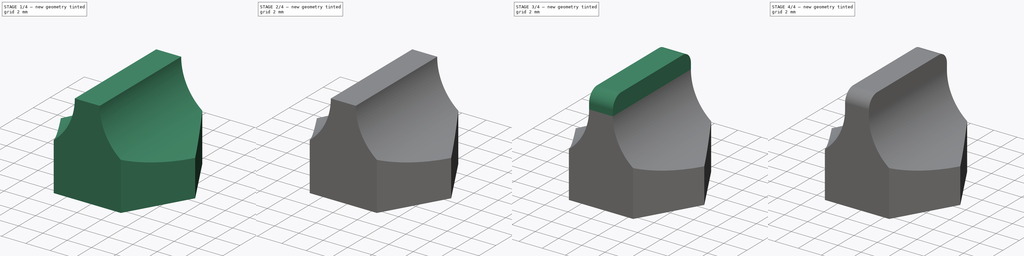
[diagram: build sequence overview — one tinted view per stage of 4, left to right]
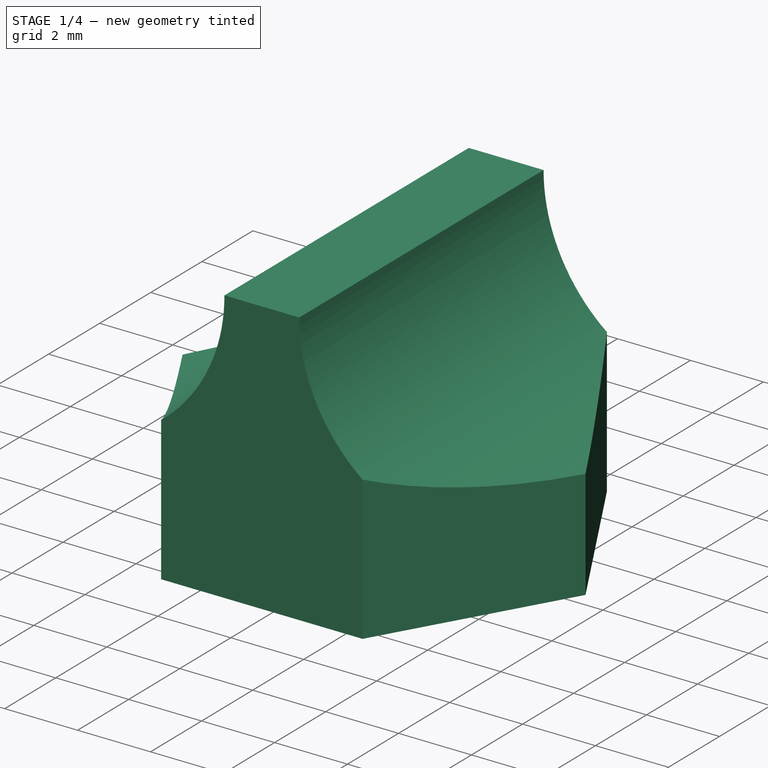
[diagram: stage 1 of 4 — iso view after this stage's code; geometry added in this stage tinted green]
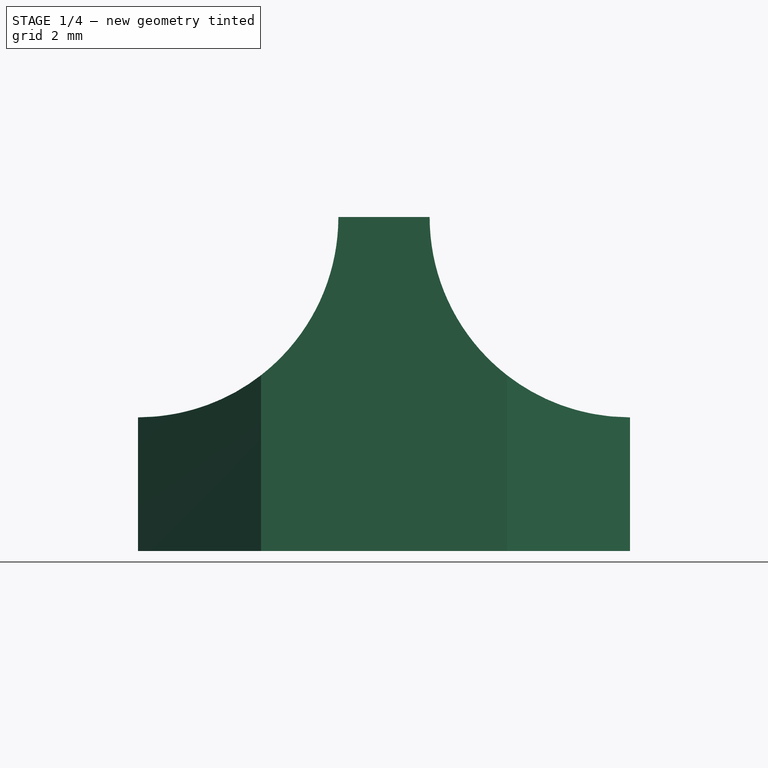
[diagram: stage 1 of 4 — front view after this stage's code; geometry added in this stage tinted green]
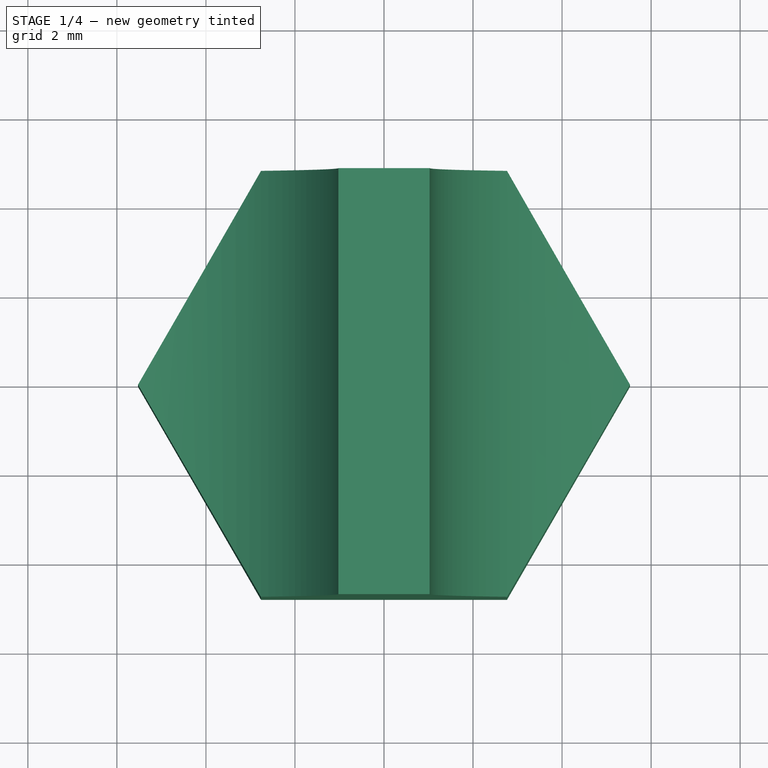
[diagram: stage 1 of 4 — top view after this stage's code; geometry added in this stage tinted green]
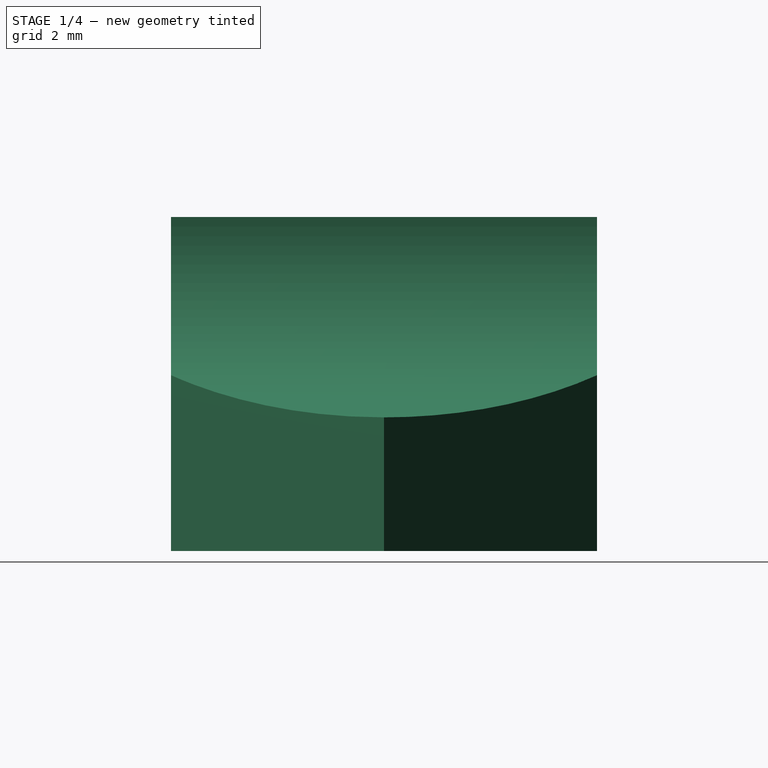
[diagram: stage 1 of 4 — right view after this stage's code; geometry added in this stage tinted green]
FCSTD DOCUMENT  (FreeCAD 1.0R39319 (Git))
Label: Thumb-Screw-Cap_A_M3_M6-outer
License: All rights reserved
LicenseURL: https://en.wikipedia.org/wiki/All_rights_reserved
objects: Sketcher::SketchObject×9, PartDesign::Pad×4, PartDesign::Pocket×4, PartDesign::Fillet×2, PartDesign::Body×2, PartDesign::Hole×1
note: 53 computed .brp shape members not serialized (recipe doc carries the construction recipe); baked Part::Feature solids carry a one-line shape summary decoded from their .brp

FEATURE [Sketcher::SketchObject] Sketch
  ArcFitTolerance = 1e-06
  AttachmentSupport = -> [XY_Plane]
  FullyConstrained = true
  MakeInternals = false
  MapMode = 5
  sketch-geometry (7):
    g0: LineSegment StartX=5.525 StartY=-1e-16 StartZ=0 EndX=2.7625 EndY=4.78479 EndZ=0
    g1: LineSegment StartX=2.7625 StartY=4.78479 StartZ=0 EndX=-2.7625 EndY=4.78479 EndZ=0
    g2: LineSegment StartX=-2.7625 StartY=4.78479 StartZ=0 EndX=-5.525 EndY=6.2093e-12 EndZ=0
    g3: LineSegment StartX=-5.525 StartY=6.209e-12 StartZ=0 EndX=-2.7625 EndY=-4.78479 EndZ=0
    g4: LineSegment StartX=-2.7625 StartY=-4.78479 StartZ=0 EndX=2.7625 EndY=-4.78479 EndZ=0
    g5: LineSegment StartX=2.7625 StartY=-4.78479 StartZ=0 EndX=5.525 EndY=0 EndZ=0
    g6: Circle [constr] CenterX=-1e-16 CenterY=0 CenterZ=0 NormalX=0 NormalY=0 NormalZ=1 AngleXU=0 Radius=5.525
  constraints (16):
    c: Coincident(g0,g1)
    c: Coincident(g1,g2)
    c: Coincident(g2,g3)
    c: Coincident(g3,g4)
    c: Coincident(g4,g5)
    c: Coincident(g5,g0)
    c: Equal(g0, g1-g5) x5
    c: PointOnObject(g0,g6)
    c: PointOnObject(g1,g6)
    c: PointOnObject(g2,g6)
    c: PointOnObject(g3,g6)
    c: PointOnObject(g4,g6)
    c: PointOnObject(g5,g6)
    c: Radius(g6) = 5.525
    c: Coincident(g6,g-1)
    c: PointOnObject(g5,g-1)
FEATURE [PartDesign::Pad] Pad
  Direction = (0,0,1)
  Length = 7.5
  Length2 = 10
  Profile = -> Sketch
  ReferenceAxis = -> Sketch [N_Axis]
  Refine = true
  Suppressed = false
  Type = 0
FEATURE [Sketcher::SketchObject] Sketch001
  ArcFitTolerance = 1e-06
  AttachmentSupport = -> [Pad]
  ExternalGeometry = -> [Pad]
  FullyConstrained = true
  MakeInternals = false
  MapMode = 5
  Placement = pos=(-4.54034e-11,-4.78479,0) rot=(1,0,0;1.5708rad)
  sketch-geometry (2):
    g0: Circle CenterX=-5.525 CenterY=7.5 CenterZ=0 NormalX=0 NormalY=0 NormalZ=1 AngleXU=0 Radius=4.5
    g1: Circle CenterX=5.525 CenterY=7.5 CenterZ=0 NormalX=0 NormalY=0 NormalZ=1 AngleXU=0 Radius=4.5
  constraints (4):
    c: Diameter(g0) = 9
    c: Coincident(g0,g-3)
    c: Diameter(g1) = 9
    c: Coincident(g1,g-4)
FEATURE [PartDesign::Pocket] Pocket
  BaseFeature = -> Pad
  Direction = (9.4891e-12,1,-2e-16)
  Length = 30
  Length2 = 5
  Profile = -> Sketch001
  ReferenceAxis = -> Sketch001 [N_Axis]
  Refine = true
  Suppressed = false
  Type = 0
FEATURE [Sketcher::SketchObject] Sketch002
  ArcFitTolerance = 1e-06
  FullyConstrained = true
  MakeInternals = false
  MapMode = 5
  Placement = pos=(0,0,0) rot=(1,0,0;3.14159rad)
  sketch-geometry (1):
    g0: Circle CenterX=0 CenterY=0 CenterZ=0 NormalX=0 NormalY=0 NormalZ=1 AngleXU=0 Radius=1.25
  constraints (2):
    c: Diameter(g0) = 2.5
    c: Coincident(g0,g-1)
FEATURE [PartDesign::Hole] Hole
  BaseFeature = -> Pocket
  CustomThreadClearance = 0
  Depth = 5
  DepthType = 0
  Diameter = 3.4
  DrillForDepth = false
  DrillPoint = 1
  DrillPointAngle = 118
  HoleCutCountersinkAngle = 90
  HoleCutCustomValues = false
  HoleCutDepth = 0
  HoleCutDiameter = 6.1
  HoleCutType = 0
  ModelThread = true
  Profile = -> Sketch002
  Refine = true
  Suppressed = false
  Tapered = false
  TaperedAngle = 90
  ThreadClass = 0
  ThreadDepth = 5
  ThreadDepthType = 0
  ThreadDirection = 0
  ThreadFit = 0
  ThreadSize = 9
  ThreadType = 1
  Threaded = false
  UseCustomThreadClearance = false
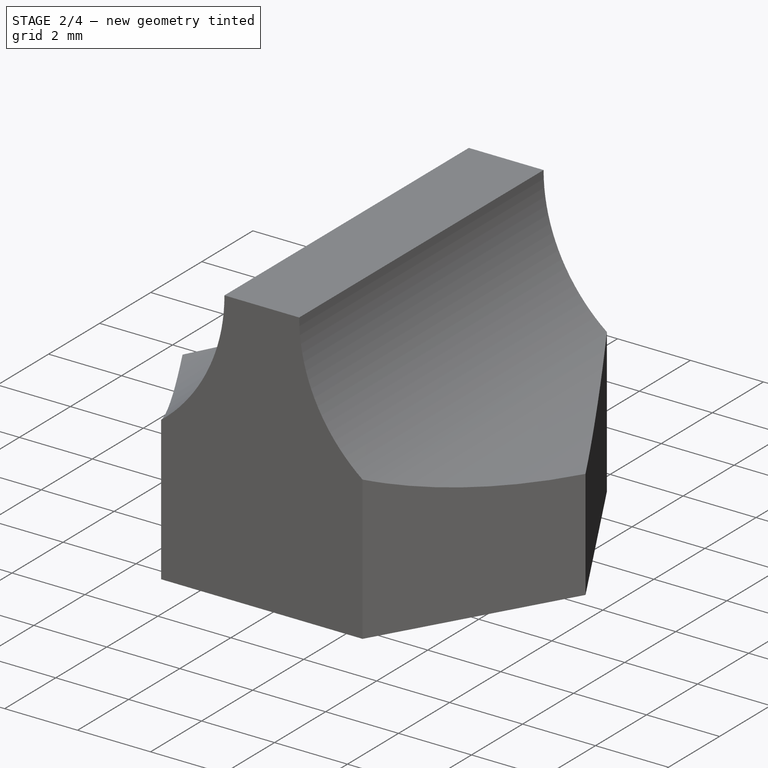
[diagram: stage 2 of 4 — iso view after this stage's code; geometry added in this stage tinted green]
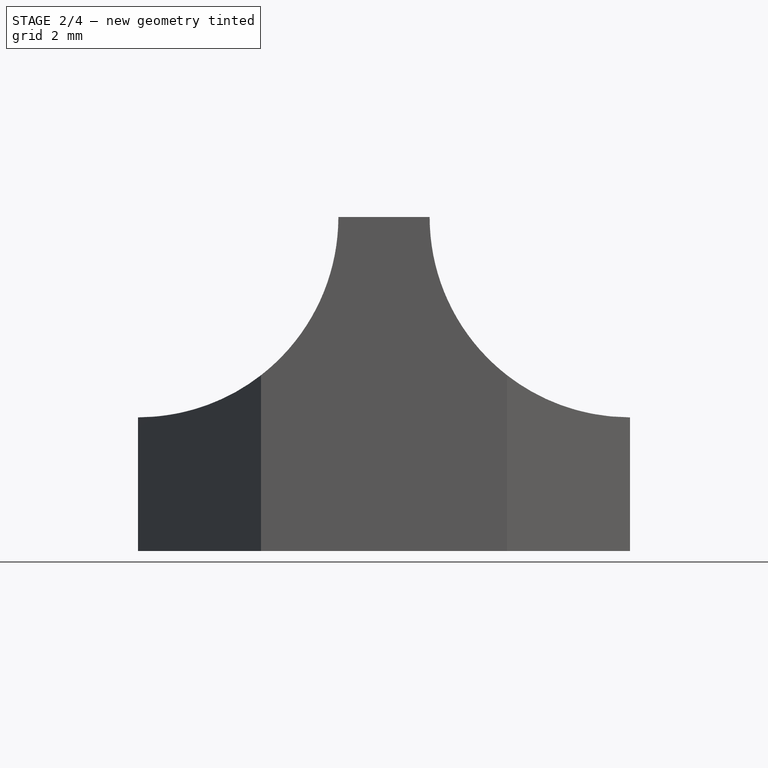
[diagram: stage 2 of 4 — front view after this stage's code; geometry added in this stage tinted green]
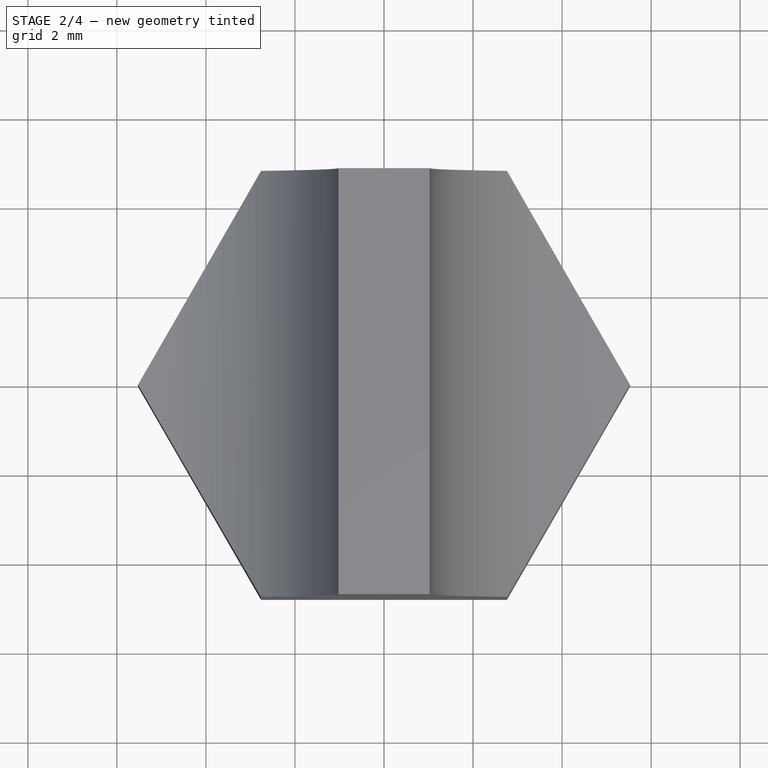
[diagram: stage 2 of 4 — top view after this stage's code; geometry added in this stage tinted green]
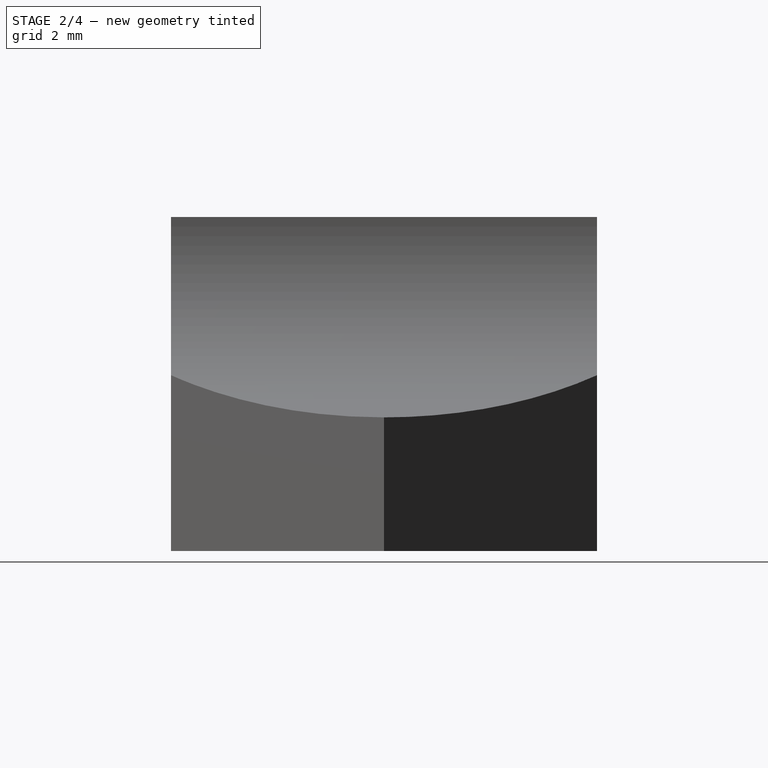
[diagram: stage 2 of 4 — right view after this stage's code; geometry added in this stage tinted green]
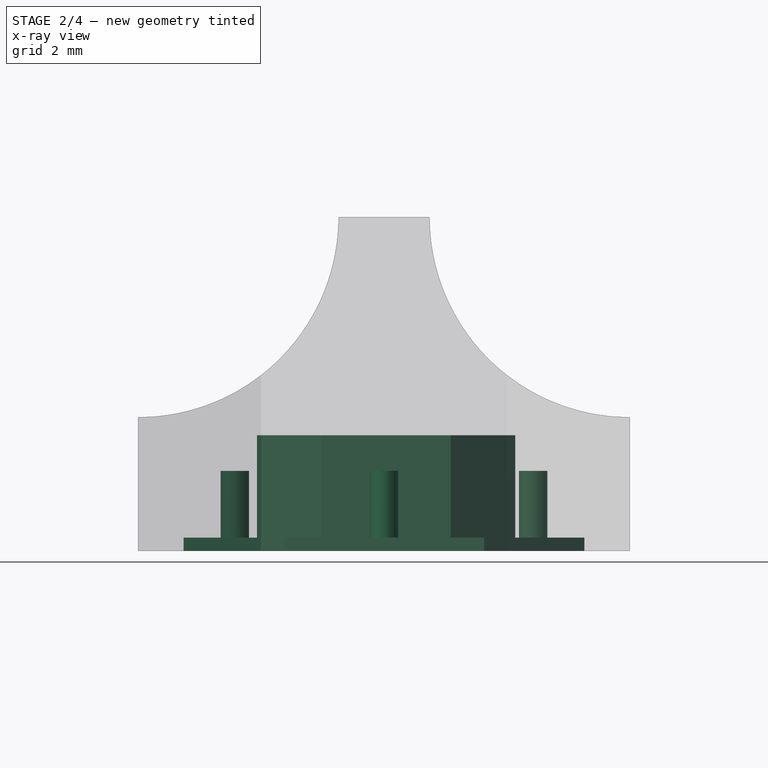
[diagram: stage 2 of 4 — x-ray composite at the front view; earlier geometry ghosted, this stage's added geometry solid]
FEATURE [Sketcher::SketchObject] Sketch003
  ArcFitTolerance = 1e-06
  AttachmentSupport = -> [Hole]
  FullyConstrained = false
  MakeInternals = false
  MapMode = 5
  Placement = pos=(0,0,0) rot=(1,0,0;3.14159rad)
  sketch-geometry (7):
    g0: LineSegment StartX=2.94834 StartY=0 StartZ=0 EndX=1.49834 EndY=2.51147 EndZ=0
    g1: LineSegment StartX=1.49834 StartY=2.51147 StartZ=0 EndX=-1.40166 EndY=2.51147 EndZ=0
    g2: LineSegment StartX=-1.40166 StartY=2.51147 StartZ=0 EndX=-2.85166 EndY=-4.8646e-12 EndZ=0
    g3: LineSegment StartX=-2.85166 StartY=-4.8646e-12 StartZ=0 EndX=-1.40166 EndY=-2.51147 EndZ=0
    g4: LineSegment StartX=-1.40166 StartY=-2.51147 StartZ=0 EndX=1.49834 EndY=-2.51147 EndZ=0
    g5: LineSegment StartX=1.49834 StartY=-2.51147 StartZ=0 EndX=2.94834 EndY=0 EndZ=0
    g6: Circle [constr] CenterX=0.0483408 CenterY=0 CenterZ=0 NormalX=0 NormalY=0 NormalZ=1 AngleXU=0 Radius=2.9
  constraints (16):
    c: Coincident(g0,g1)
    c: Coincident(g1,g2)
    c: Coincident(g2,g3)
    c: Coincident(g3,g4)
    c: Coincident(g4,g5)
    c: Coincident(g5,g0)
    c: Equal(g0, g1-g5) x5
    c: PointOnObject(g0,g6)
    c: PointOnObject(g1,g6)
    c: PointOnObject(g2,g6)
    c: PointOnObject(g3,g6)
    c: PointOnObject(g4,g6)
    c: PointOnObject(g5,g6)
    c: Radius(g6) = 2.9
    c: PointOnObject(g6,g-1)
    c: PointOnObject(g5,g-1)
FEATURE [PartDesign::Pocket] Pocket001
  BaseFeature = -> Hole
  Direction = (0,0,1)
  Length = 2.6
  Length2 = 5
  Profile = -> Sketch003
  ReferenceAxis = -> Sketch003 [N_Axis]
  Refine = true
  Suppressed = false
  Type = 0
FEATURE [Sketcher::SketchObject] Sketch004
  ArcFitTolerance = 1e-06
  AttachmentSupport = -> [Pocket001]
  FullyConstrained = true
  MakeInternals = false
  MapMode = 5
  Placement = pos=(0,0,0) rot=(1,0,0;3.14159rad)
  sketch-geometry (7):
    g0: LineSegment StartX=4.5 StartY=0 StartZ=0 EndX=2.25 EndY=3.89711 EndZ=0
    g1: LineSegment StartX=2.25 StartY=3.89711 StartZ=0 EndX=-2.25 EndY=3.89711 EndZ=0
    g2: LineSegment StartX=-2.25 StartY=3.89711 StartZ=0 EndX=-4.5 EndY=4e-16 EndZ=0
    g3: LineSegment StartX=-4.5 StartY=4e-16 StartZ=0 EndX=-2.25 EndY=-3.89711 EndZ=0
    g4: LineSegment StartX=-2.25 StartY=-3.89711 StartZ=0 EndX=2.25 EndY=-3.89711 EndZ=0
    g5: LineSegment StartX=2.25 StartY=-3.89711 StartZ=0 EndX=4.5 EndY=0 EndZ=0
    g6: Circle [constr] CenterX=0 CenterY=0 CenterZ=0 NormalX=0 NormalY=0 NormalZ=1 AngleXU=0 Radius=4.5
  constraints (16):
    c: Coincident(g0,g1)
    c: Coincident(g1,g2)
    c: Coincident(g2,g3)
    c: Coincident(g3,g4)
    c: Coincident(g4,g5)
    c: Coincident(g5,g0)
    c: Equal(g0, g1-g5) x5
    c: PointOnObject(g0,g6)
    c: PointOnObject(g1,g6)
    c: PointOnObject(g2,g6)
    c: PointOnObject(g3,g6)
    c: PointOnObject(g4,g6)
    c: PointOnObject(g5,g6)
    c: Radius(g6) = 4.5
    c: Coincident(g6,g-1)
    c: PointOnObject(g5,g-1)
FEATURE [PartDesign::Pocket] Pocket002
  BaseFeature = -> Pocket001
  Direction = (0,0,1)
  Length = 0.3
  Length2 = 5
  Profile = -> Sketch004
  ReferenceAxis = -> Sketch004 [N_Axis]
  Refine = true
  Suppressed = false
  Type = 0
FEATURE [PartDesign::Body] Body001  label="Cap-body"
  AllowCompound = false
  Group = -> [Sketch005,Pad001,Sketch006,Pad002,Fillet]
  Origin = -> Origin001
  Tip = -> Fillet
FEATURE [Sketcher::SketchObject] Sketch007
  ArcFitTolerance = 1e-06
  AttachmentSupport = -> [Pocket002]
  FullyConstrained = false
  MakeInternals = false
  MapMode = 5
  Placement = pos=(0,0,0.3) rot=(1,0,0;3.14159rad)
  sketch-geometry (5):
    g0: Circle [constr] CenterX=0 CenterY=0 CenterZ=0 NormalX=0 NormalY=0 NormalZ=1 AngleXU=0 Radius=3.35
    g1: Circle CenterX=0.000817 CenterY=-3.35 CenterZ=0 NormalX=0 NormalY=0 NormalZ=1 AngleXU=0 Radius=0.32
    g2: Circle CenterX=-3.35 CenterY=-0.004097 CenterZ=0 NormalX=0 NormalY=0 NormalZ=1 AngleXU=0 Radius=0.32
    g3: Circle CenterX=0.000817 CenterY=3.35 CenterZ=0 NormalX=0 NormalY=0 NormalZ=1 AngleXU=0 Radius=0.32
    g4: Circle CenterX=3.35 CenterY=-0.004097 CenterZ=0 NormalX=0 NormalY=0 NormalZ=1 AngleXU=0 Radius=0.32
  constraints (8):
    c: Diameter(g0) = 6.7
    c: Coincident(g0,g-1)
    c: Diameter(g1) = 0.64
    c: PointOnObject(g1,g0)
    c: Diameter(g2) = 0.64
    c: PointOnObject(g2,g0)
    c: Diameter(g3) = 0.64
    c: Diameter(g4) = 0.64
FEATURE [PartDesign::Pocket] Pocket003
  BaseFeature = -> Pocket002
  Direction = (0,0,1)
  Length = 1.5
  Length2 = 5
  Profile = -> Sketch007
  ReferenceAxis = -> Sketch007 [N_Axis]
  Refine = true
  Suppressed = false
  Type = 0
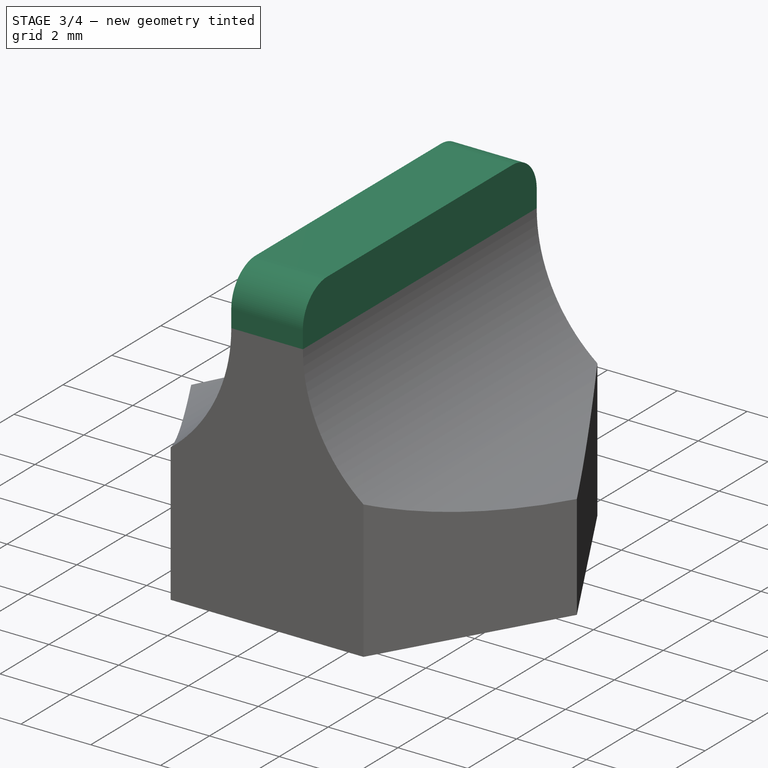
[diagram: stage 3 of 4 — iso view after this stage's code; geometry added in this stage tinted green]
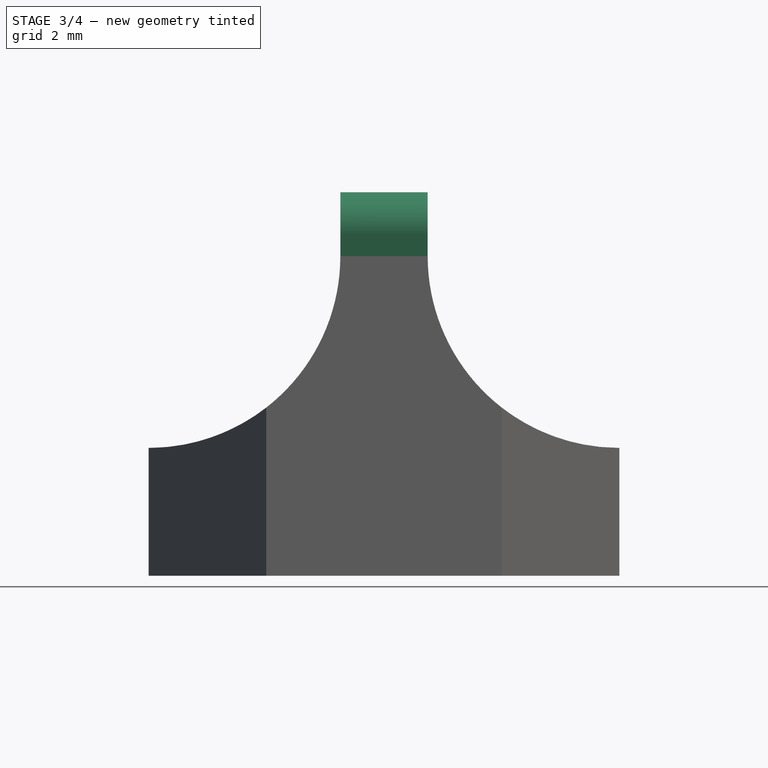
[diagram: stage 3 of 4 — front view after this stage's code; geometry added in this stage tinted green]
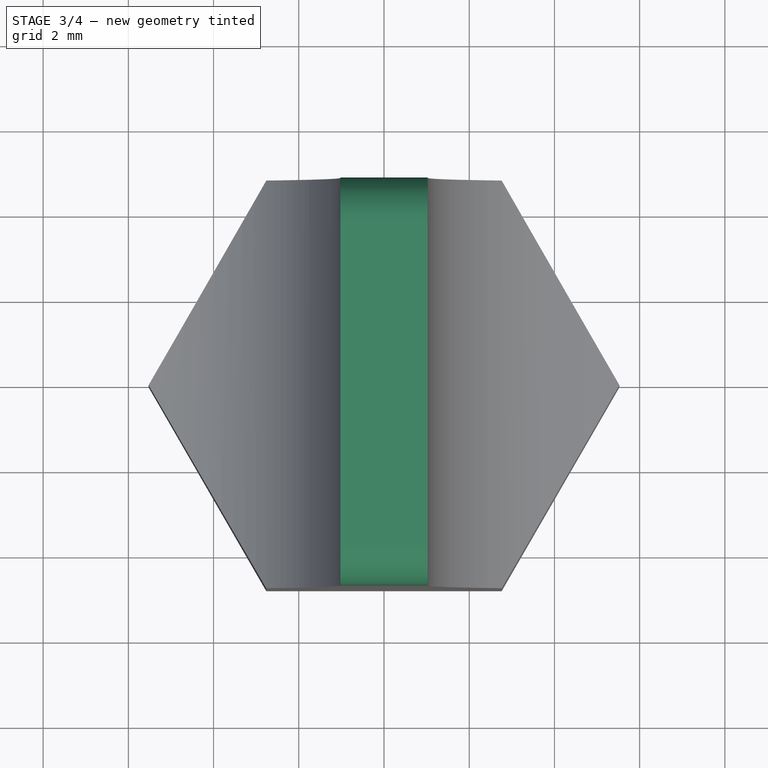
[diagram: stage 3 of 4 — top view after this stage's code; geometry added in this stage tinted green]
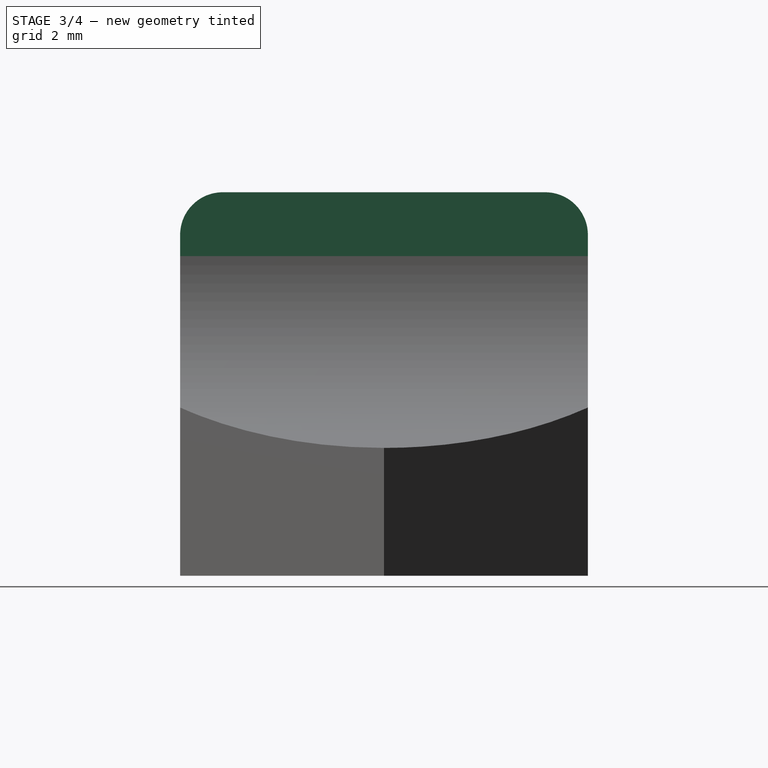
[diagram: stage 3 of 4 — right view after this stage's code; geometry added in this stage tinted green]
FEATURE [Sketcher::SketchObject] Sketch008
  ArcFitTolerance = 1e-06
  AttachmentSupport = -> [Pocket003]
  ExternalGeometry = -> [Pocket003]
  FullyConstrained = true
  MakeInternals = false
  MapMode = 5
  Placement = pos=(0,0,7.5) rot=(0,0,1;0rad)
  sketch-geometry (4):
    g0: LineSegment StartX=-1.025 StartY=4.78479 StartZ=0 EndX=-1.025 EndY=-4.78479 EndZ=0
    g1: LineSegment StartX=-1.025 StartY=-4.78479 StartZ=0 EndX=1.025 EndY=-4.78479 EndZ=0
    g2: LineSegment StartX=1.025 StartY=-4.78479 StartZ=0 EndX=1.025 EndY=4.78479 EndZ=0
    g3: LineSegment StartX=1.025 StartY=4.78479 StartZ=0 EndX=-1.025 EndY=4.78479 EndZ=0
  constraints (10):
    c: Coincident(g0,g1)
    c: Coincident(g1,g2)
    c: Coincident(g2,g3)
    c: Coincident(g3,g0)
    c: Vertical(g0)
    c: Vertical(g2)
    c: Horizontal(g1)
    c: Horizontal(g3)
    c: Coincident(g0,g-3)
    c: Coincident(g1,g-4)
FEATURE [PartDesign::Pad] Pad003
  BaseFeature = -> Pocket003
  Direction = (0,0,1)
  Length = 1.5
  Length2 = 10
  Profile = -> Sketch008
  ReferenceAxis = -> Sketch008 [N_Axis]
  Refine = true
  Suppressed = false
  Type = 0
FEATURE [PartDesign::Fillet] Fillet001
  Base = -> Pad003 [Edge57,Edge58]
  BaseFeature = -> Pad003
  Radius = 1
  Refine = true
  SupportTransform = false
  Suppressed = false
  UseAllEdges = false
FEATURE [PartDesign::Body] Body  label="Main-body"
  AllowCompound = false
  Group = -> [Sketch,Pad,Sketch001,Pocket,Sketch002,Hole,Sketch003,Pocket001,Sketch004,Pocket002,Sketch007,Pocket003,Sketch008,Pad003,Fillet001]
  Origin = -> Origin
  Tip = -> Fillet001
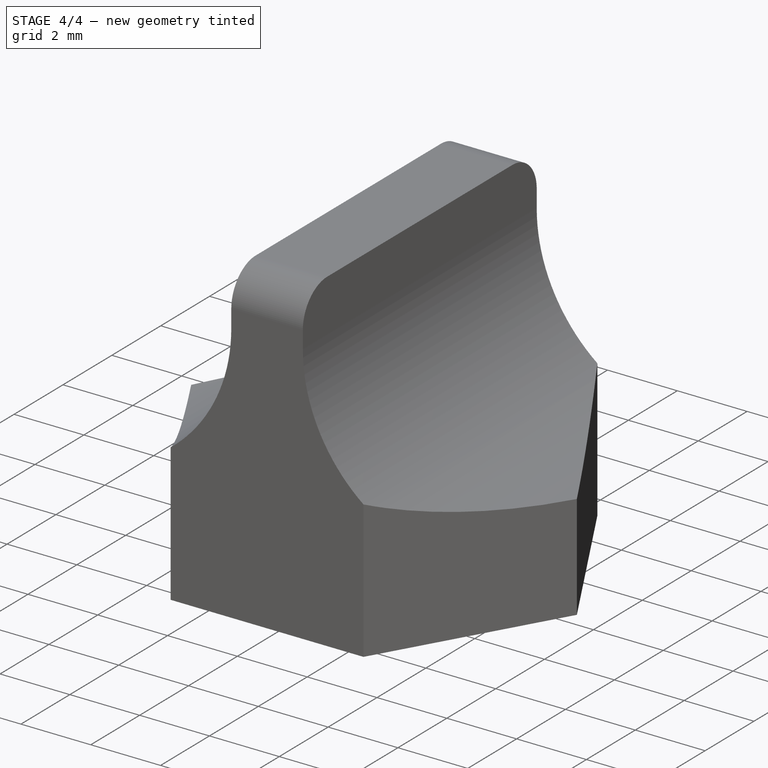
[diagram: stage 4 of 4 — iso view after this stage's code; geometry added in this stage tinted green]
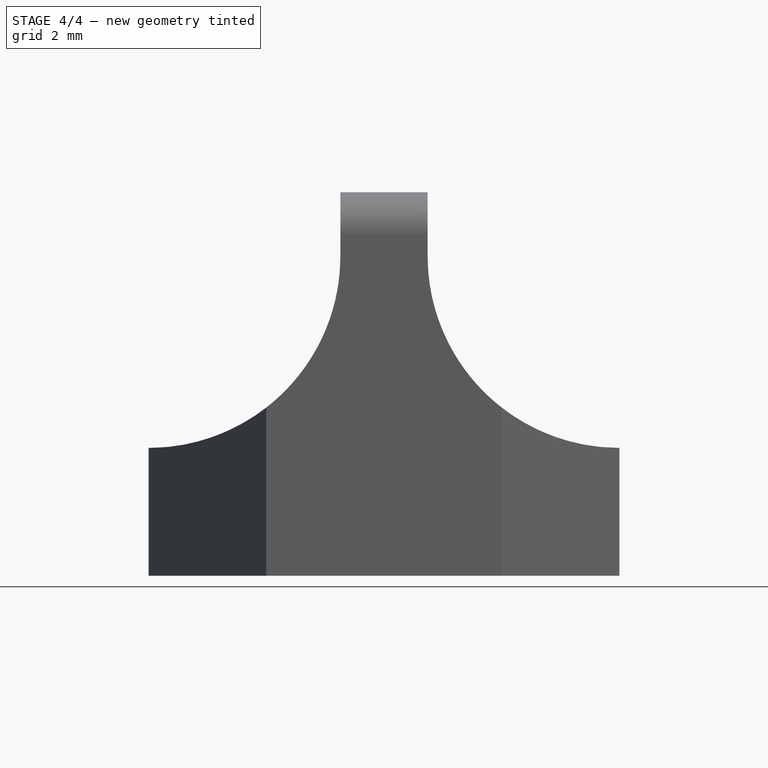
[diagram: stage 4 of 4 — front view after this stage's code; geometry added in this stage tinted green]
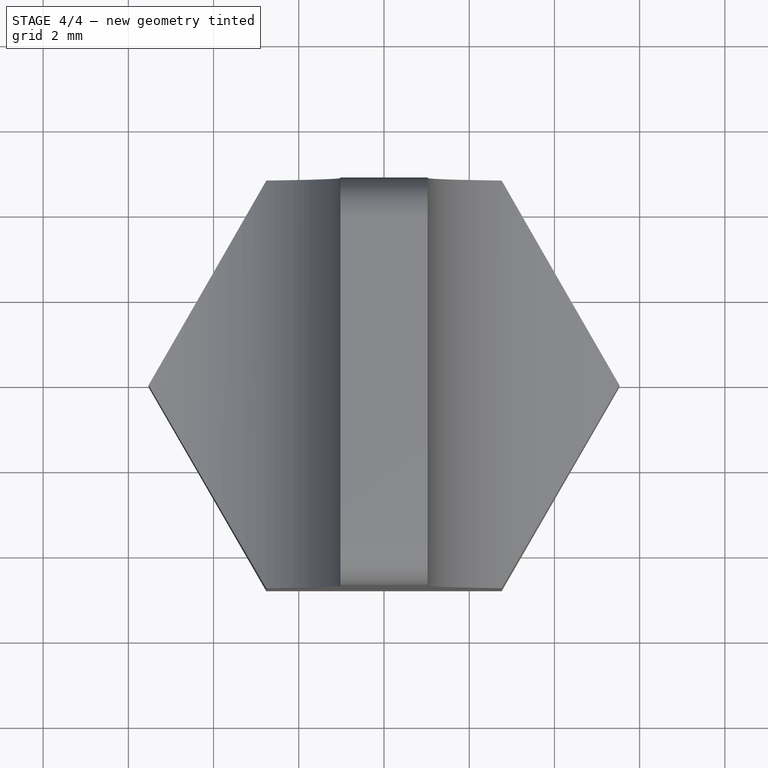
[diagram: stage 4 of 4 — top view after this stage's code; geometry added in this stage tinted green]
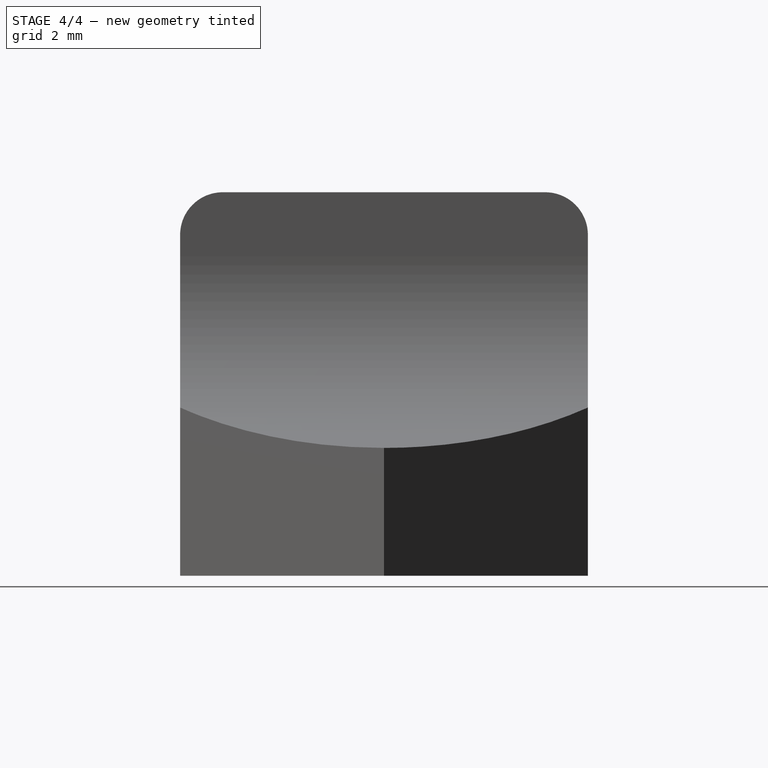
[diagram: stage 4 of 4 — right view after this stage's code; geometry added in this stage tinted green]
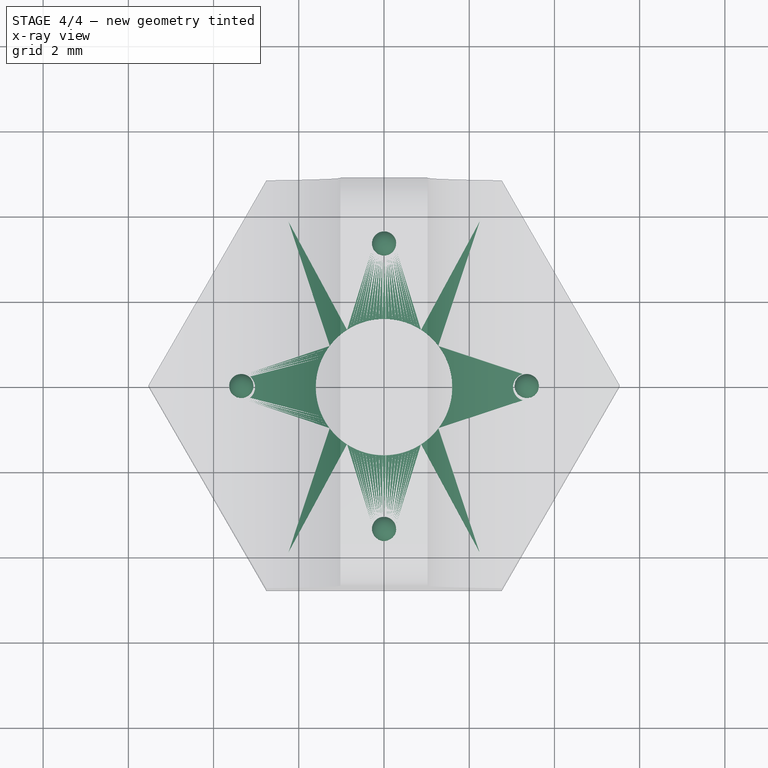
[diagram: stage 4 of 4 — x-ray composite at the top view; earlier geometry ghosted, this stage's added geometry solid]
FEATURE [Sketcher::SketchObject] Sketch005
  ArcFitTolerance = 1e-06
  AttachmentSupport = -> [XY_Plane001]
  FullyConstrained = true
  MakeInternals = false
  MapMode = 5
  sketch-geometry (8):
    g0: LineSegment StartX=4.5 StartY=0 StartZ=0 EndX=2.25 EndY=3.89711 EndZ=0
    g1: LineSegment StartX=2.25 StartY=3.89711 StartZ=0 EndX=-2.25 EndY=3.89711 EndZ=0
    g2: LineSegment StartX=-2.25 StartY=3.89711 StartZ=0 EndX=-4.5 EndY=4e-16 EndZ=0
    g3: LineSegment StartX=-4.5 StartY=4e-16 StartZ=0 EndX=-2.25 EndY=-3.89711 EndZ=0
    g4: LineSegment StartX=-2.25 StartY=-3.89711 StartZ=0 EndX=2.25 EndY=-3.89711 EndZ=0
    g5: LineSegment StartX=2.25 StartY=-3.89711 StartZ=0 EndX=4.5 EndY=0 EndZ=0
    g6: Circle [constr] CenterX=0 CenterY=0 CenterZ=0 NormalX=0 NormalY=0 NormalZ=1 AngleXU=0 Radius=4.5
    g7: Circle CenterX=0 CenterY=0 CenterZ=0 NormalX=0 NormalY=0 NormalZ=1 AngleXU=0 Radius=1.6
  constraints (18):
    c: Coincident(g0,g1)
    c: Coincident(g1,g2)
    c: Coincident(g2,g3)
    c: Coincident(g3,g4)
    c: Coincident(g4,g5)
    c: Coincident(g5,g0)
    c: Equal(g0, g1-g5) x5
    c: PointOnObject(g0,g6)
    c: PointOnObject(g1,g6)
    c: PointOnObject(g2,g6)
    c: PointOnObject(g3,g6)
    c: PointOnObject(g4,g6)
    c: PointOnObject(g5,g6)
    c: Radius(g6) = 4.5
    c: Coincident(g6,g-1)
    c: PointOnObject(g5,g-1)
    c: Diameter(g7) = 3.2
    c: Coincident(g7,g6)
FEATURE [PartDesign::Pad] Pad001
  Direction = (0,0,1)
  Length = 0.3
  Length2 = 10
  Profile = -> Sketch005
  ReferenceAxis = -> Sketch005 [N_Axis]
  Refine = true
  Suppressed = false
  Type = 0
FEATURE [Sketcher::SketchObject] Sketch006
  ArcFitTolerance = 1e-06
  AttachmentSupport = -> [Pad001]
  ExternalGeometry = -> [Pad001]
  FullyConstrained = false
  MakeInternals = false
  MapMode = 5
  Placement = pos=(0,0,0.3) rot=(0,0,1;0rad)
  sketch-geometry (14):
    g0: LineSegment [constr] StartX=2.8 StartY=-1.24e-14 StartZ=0 EndX=1.4 EndY=2.42487 EndZ=0
    g1: LineSegment [constr] StartX=1.4 StartY=2.42487 StartZ=0 EndX=-1.4 EndY=2.42487 EndZ=0
    g2: LineSegment [constr] StartX=-1.4 StartY=2.42487 StartZ=0 EndX=-2.8 EndY=1.097e-13 EndZ=0
    g3: LineSegment [constr] StartX=-2.8 StartY=1.097e-13 StartZ=0 EndX=-1.4 EndY=-2.42487 EndZ=0
    g4: LineSegment [constr] StartX=-1.4 StartY=-2.42487 StartZ=0 EndX=1.4 EndY=-2.42487 EndZ=0
    g5: LineSegment [constr] StartX=1.4 StartY=-2.42487 StartZ=0 EndX=2.8 EndY=-1.24e-14 EndZ=0
    g6: Circle [constr] CenterX=-1.525e-13 CenterY=2.95e-14 CenterZ=0 NormalX=0 NormalY=0 NormalZ=1 AngleXU=0 Radius=2.8
    g7: LineSegment [constr] StartX=-2.7e-15 StartY=-3.89711 StartZ=0 EndX=-2.7e-15 EndY=-2.8 EndZ=0
    g8: GeomPoint [constr] X=-2.7e-15 Y=-3.34856 Z=0
    g9: Circle [constr] CenterX=-1.525e-13 CenterY=2.95e-14 CenterZ=0 NormalX=0 NormalY=0 NormalZ=1 AngleXU=0 Radius=3.34856
    g10: Circle CenterX=-3.34856 CenterY=-0.00293695 CenterZ=0 NormalX=0 NormalY=0 NormalZ=1 AngleXU=0 Radius=0.32
    g11: Circle CenterX=-2.7e-15 CenterY=-3.34856 CenterZ=0 NormalX=0 NormalY=0 NormalZ=1 AngleXU=0 Radius=0.319777
    g12: Circle CenterX=-2.7e-15 CenterY=3.34856 CenterZ=0 NormalX=0 NormalY=0 NormalZ=1 AngleXU=0 Radius=0.319777
    g13: Circle CenterX=3.34856 CenterY=-0.00293695 CenterZ=0 NormalX=0 NormalY=0 NormalZ=1 AngleXU=0 Radius=0.32
  constraints (26):
    c: Coincident(g0,g1)
    c: Coincident(g1,g2)
    c: Coincident(g2,g3)
    c: Coincident(g3,g4)
    c: Coincident(g4,g5)
    c: Coincident(g5,g0)
    c: Equal(g0, g1-g5) x5
    c: PointOnObject(g0,g6)
    c: PointOnObject(g1,g6)
    c: PointOnObject(g2,g6)
    c: PointOnObject(g3,g6)
    c: PointOnObject(g4,g6)
    c: PointOnObject(g5,g6)
    c: Radius(g6) = 2.8
    c: Coincident(g6,g-1)
    c: PointOnObject(g5,g-1)
    c: Symmetric(g-4,g-4,g7)
    c: PointOnObject(g7,g6)
    c: Vertical(g7)
    c: Symmetric(g7,g7,g8)
    c: Coincident(g9,g6)
    c: PointOnObject(g8,g9)
    c: Diameter(g10) = 0.64
    c: PointOnObject(g10,g9)
    c: Coincident(g11,g8)
    c: Diameter(g13) = 0.64
FEATURE [PartDesign::Pad] Pad002
  BaseFeature = -> Pad001
  Direction = (0,0,1)
  Length = 1.32
  Length2 = 10
  Profile = -> Sketch006
  ReferenceAxis = -> Sketch006 [N_Axis]
  Refine = true
  Suppressed = false
  Type = 0
FEATURE [PartDesign::Fillet] Fillet
  Base = -> Pad002 [Edge27,Edge29,Edge33,Edge31]
  BaseFeature = -> Pad002
  Radius = 0.3
  Refine = true
  SupportTransform = false
  Suppressed = false
  UseAllEdges = false
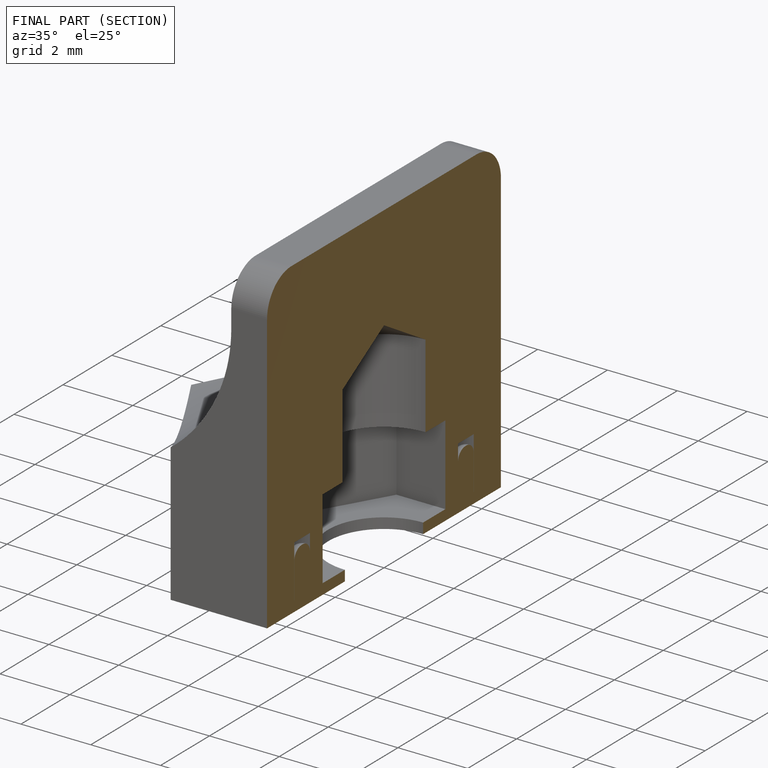
[diagram: finished part — half-section view (interior)]
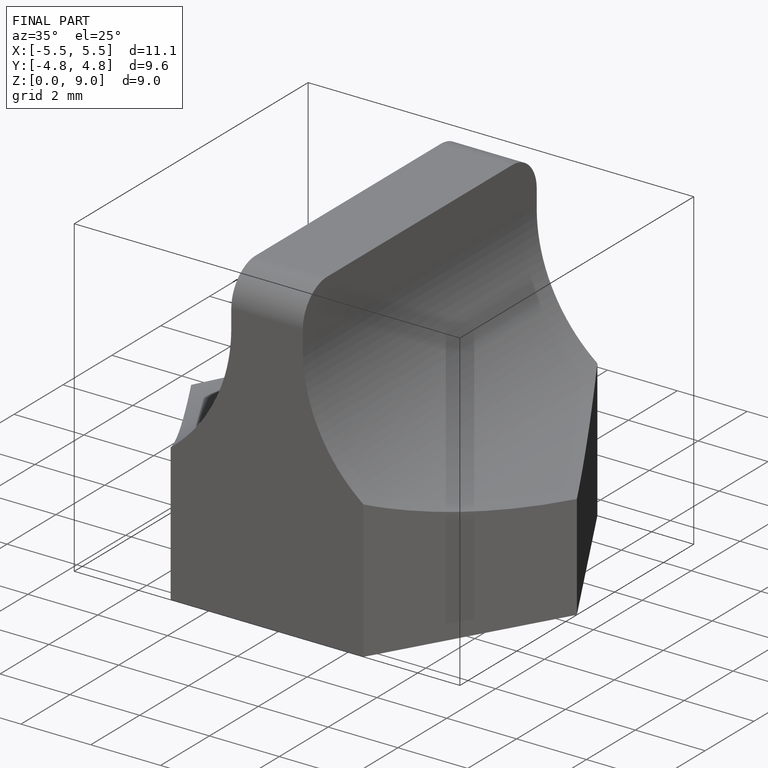
[diagram: finished part — iso view with bounding-box wireframe]
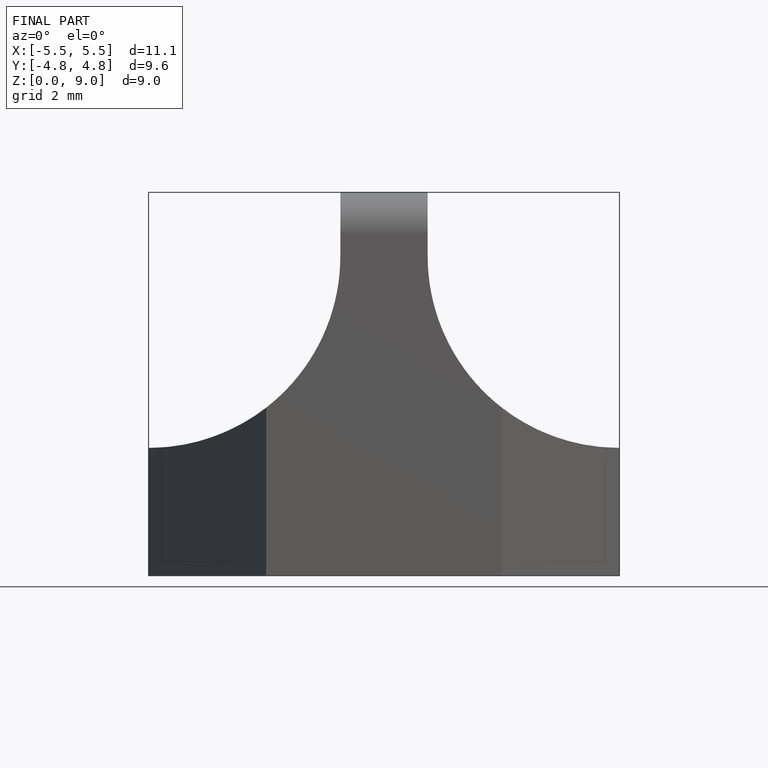
[diagram: finished part — front view with bounding-box wireframe]
